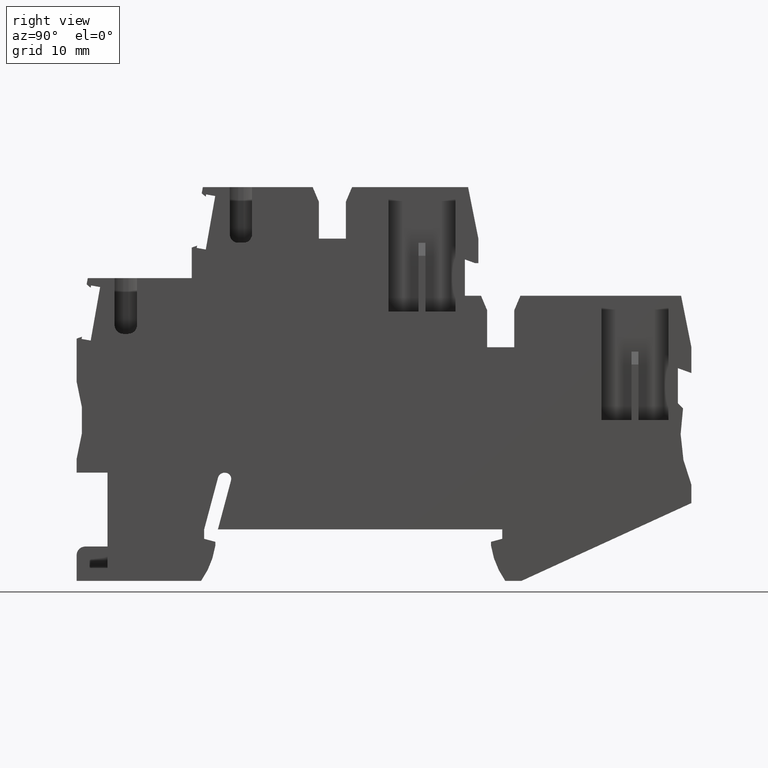
[diagram: clean part render]
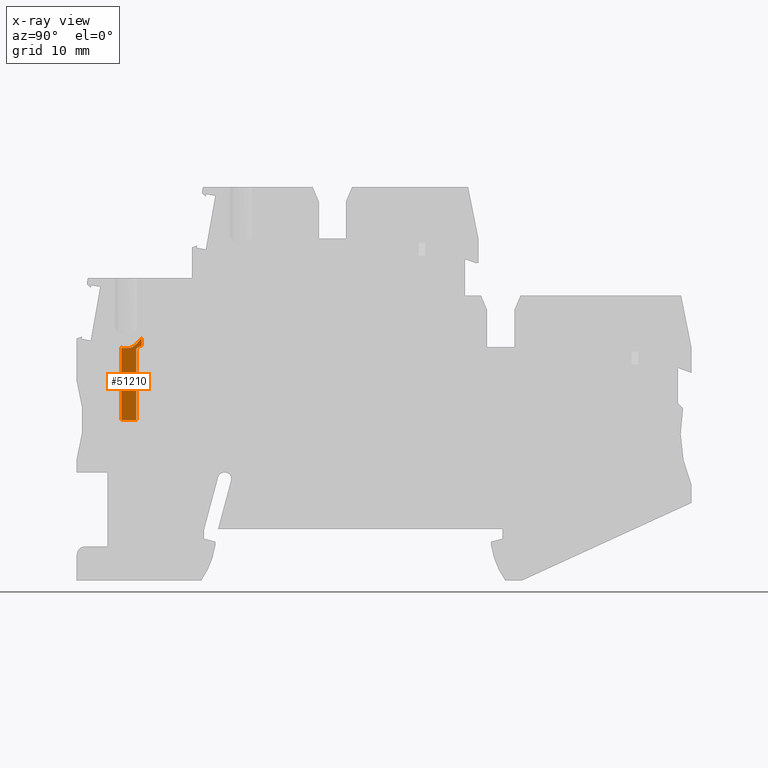
[diagram: x-ray — body ghosted, one internal face saturated and labeled with its STEP entity id]
A machine part, right view, then the same camera in x-ray: the body is ghosted and one INTERNAL B-rep face — a face not visible from any outside direction — is saturated and labeled: STEP entity #51210.
In plain terms, the highlighted planar face has unit normal (-1, 0, -0).
Its self-contained STEP definition (entity closure, byte-faithful):
#28490=CARTESIAN_POINT('',(141.343635451664,25.2467138221766,
51.2699999999994));
#28500=DIRECTION('',(0.,1.,0.));
#28510=DIRECTION('',(-1.,0.,0.));
#28520=AXIS2_PLACEMENT_3D('',#28490,#28500,#28510);
#28530=CONICAL_SURFACE('',#28520,2.4,0.523598775598298);
#28580=CARTESIAN_POINT('',(141.343635451663,23.6012655549863,
52.7199999999994));
#28590=VERTEX_POINT('',#28580);
#28620=CARTESIAN_POINT('',(140.652891747308,22.5967138221764,52.72));
#28630=DIRECTION('',(0.,0.,-1.));
#28640=DIRECTION('',(1.,0.,0.));
#28650=AXIS2_PLACEMENT_3D('',#28620,#28630,#28640);
#28660=PLANE('',#28650);
#28670=CARTESIAN_POINT('',(141.343635451663,23.6012655549873,52.72));
#28680=CARTESIAN_POINT('',(141.364502396657,23.6012655549872,52.72));
#28690=CARTESIAN_POINT('',(141.385415932443,23.6020480025081,52.72));
#28700=CARTESIAN_POINT('',(141.406300217432,23.6036098206589,52.72));
#28710=CARTESIAN_POINT('',(141.42718432045,23.6051716252011,52.72));
#28720=CARTESIAN_POINT('',(141.448036163921,23.6075125788127,
52.7199999999997));
#28730=CARTESIAN_POINT('',(141.468777193002,23.610601548836,
52.7199999999997));
#28740=CARTESIAN_POINT('',(141.489518247334,23.6136905226199,
52.7199999999997));
#28750=CARTESIAN_POINT('',(141.510145908656,23.6175268611545,
52.7199999999994));
#28760=CARTESIAN_POINT('',(141.530587536323,23.6220543597171,
52.7199999999994));
#28770=CARTESIAN_POINT('',(141.551029363383,23.6265819024417,
52.7199999999994));
#28780=CARTESIAN_POINT('',(141.571283275718,23.631799750434,
52.7199999999999));
#28790=CARTESIAN_POINT('',(141.591288553487,23.637633357991,
52.7199999999999));
#28800=CARTESIAN_POINT('',(141.611302821894,23.6434695872491,
52.7199999999999));
#28810=CARTESIAN_POINT('',(141.631018031107,23.6499027178598,
52.7199999999993));
#28820=CARTESIAN_POINT('',(141.650579861898,23.6569195810514,
52.7199999999993));
#28830=CARTESIAN_POINT('',(141.670136706652,23.6639346557427,
52.7199999999993));
#28840=CARTESIAN_POINT('',(141.689504767188,23.6715238285442,52.72));
#28850=CARTESIAN_POINT('',(141.708676237396,23.6796305519108,52.72));
#28860=CARTESIAN_POINT('',(141.747019208385,23.6958440115722,52.72));
#28870=CARTESIAN_POINT('',(141.784575415822,23.7141274199553,52.72));
#28880=CARTESIAN_POINT('',(141.821285613908,23.7340212674954,52.72));
#28890=CARTESIAN_POINT('',(141.857995624217,23.7539150132759,52.72));
#28900=CARTESIAN_POINT('',(141.893860768248,23.7754186582795,
52.7199999999911));
#28910=CARTESIAN_POINT('',(141.92881781051,23.7980782756435,
52.7199999999911));
#28920=CARTESIAN_POINT('',(141.94629954784,23.8094101691079,
52.7199999999911));
#28930=CARTESIAN_POINT('',(141.963540906847,23.8210221910356,
52.7199999999995));
#28940=CARTESIAN_POINT('',(141.980570856518,23.8328850522906,
52.7199999999995));
#28950=CARTESIAN_POINT('',(141.997607423503,23.8447525230887,
52.7199999999995));
#28960=CARTESIAN_POINT('',(142.014455680429,23.8568875293601,52.72));
#28970=CARTESIAN_POINT('',(142.031130259209,23.8692607777406,52.72));
#28980=CARTESIAN_POINT('',(142.047804883933,23.881634060213,52.72));
#28990=CARTESIAN_POINT('',(142.064305953484,23.8942457162682,52.72));
#29000=CARTESIAN_POINT('',(142.080647021332,23.907070386658,52.72));
#29010=CARTESIAN_POINT('',(142.096988117601,23.9198950793534,52.72));
#29020=CARTESIAN_POINT('',(142.113169301729,23.9329328969106,52.72));
#29030=CARTESIAN_POINT('',(142.129202805059,23.946161643017,52.72));
#29040=CARTESIAN_POINT('',(142.16126965663,23.9726190072724,52.72));
#29050=CARTESIAN_POINT('',(142.192748066293,23.9998389606415,52.72));
#29060=CARTESIAN_POINT('',(142.223717568508,24.0276709824719,52.72));
#29070=CARTESIAN_POINT('',(142.254687141165,24.055503067607,52.72));
#29080=CARTESIAN_POINT('',(142.285148796231,24.0839490768544,52.72));
#29090=CARTESIAN_POINT('',(142.31515994289,24.1128829364211,52.72));
#29100=CARTESIAN_POINT('',(142.345171028138,24.1418167367807,52.72));
#29110=CARTESIAN_POINT('',(142.374732002643,24.1712394902047,52.72));
#29120=CARTESIAN_POINT('',(142.403880933272,24.2010394543302,52.72));
#29130=CARTESIAN_POINT('',(142.433029775894,24.2308393284826,52.72));
#29140=CARTESIAN_POINT('',(142.461766664982,24.2610170168,52.72));
#29150=CARTESIAN_POINT('',(142.490114226966,24.2914696858302,52.72));
#29160=CARTESIAN_POINT('',(142.5184682647,24.3219293115024,52.72));
#29170=CARTESIAN_POINT('',(142.546396875849,24.3526237121565,
52.7199999999887));
#29180=CARTESIAN_POINT('',(142.574048585426,24.3836117696246,
52.7199999999887));
#29190=CARTESIAN_POINT('',(142.60169691324,24.4145960372977,
52.7199999999887));
#29200=CARTESIAN_POINT('',(142.629044633301,24.4458491801443,52.72));
#29210=CARTESIAN_POINT('',(142.656130154897,24.4773318524904,52.72));
#29220=CARTESIAN_POINT('',(142.683215714024,24.5088145684606,52.72));
#29230=CARTESIAN_POINT('',(142.710039126624,24.5405271233941,52.72));
#29240=CARTESIAN_POINT('',(142.736632295367,24.5724375191148,52.72));
#29250=CARTESIAN_POINT('',(142.763225480584,24.6043479346028,52.72));
#29260=CARTESIAN_POINT('',(142.78958844356,24.6364564080436,52.72));
#29270=CARTESIAN_POINT('',(142.815747598746,24.668736214503,52.72));
#29280=CARTESIAN_POINT('',(142.841906757392,24.7010160252337,52.72));
#29290=CARTESIAN_POINT('',(142.867862112163,24.7334673213924,52.72));
#29300=CARTESIAN_POINT('',(142.893635451556,24.7660671728053,52.72));
#29310=B_SPLINE_CURVE_WITH_KNOTS('',3,(#28670,#28680,#28690,#28700,
#28710,#28720,#28730,#28740,#28750,#28760,#28770,#28780,#28790,#28800,
#28810,#28820,#28830,#28840,#28850,#28860,#28870,#28880,#28890,#28900,
#28910,#28920,#28930,#28940,#28950,#28960,#28970,#28980,#28990,#29000,
#29010,#29020,#29030,#29040,#29050,#29060,#29070,#29080,#29090,#29100,
#29110,#29120,#29130,#29140,#29150,#29160,#29170,#29180,#29190,#29200,
#29210,#29220,#29230,#29240,#29250,#29260,#29270,#29280,#29290,#29300),
.UNSPECIFIED.,.F.,.F.,(4,3,3,3,3,3,3,3,3,3,3,3,3,3,3,3,3,3,3,3,3,4),(0.,
0.0627231605469414,0.125604174314015,0.188479487788734,0.251159107173066
,0.313517829807137,0.375903574984352,0.501009049946287,0.626206979874277
,0.688578842571129,0.750866375271425,0.813169765681626,0.875507424614241
,1.00032381104805,1.12532134227659,1.25039774411225,1.37535615425059,
1.49999849743412,1.62458285373215,1.74918623014436,1.87381733988813,
1.9984769623291),.UNSPECIFIED.);
#29320=SURFACE_CURVE('',#29310,(#28660,#28530),.CURVE_3D.);
#29330=CARTESIAN_POINT('',(142.893635451663,24.7660671728445,
52.7199999999994));
#29340=VERTEX_POINT('',#29330);
#29350=EDGE_CURVE('',#28590,#29340,#29320,.T.);
#43680=CARTESIAN_POINT('',(14.196323,23.6012655549873,52.72));
#43690=DIRECTION('',(1.,0.,0.));
#43700=VECTOR('',#43690,1.);
#43710=LINE('',#43680,#43700);
#43720=CARTESIAN_POINT('',(140.743635451693,23.6012655549863,
52.7199999999994));
#43730=VERTEX_POINT('',#43720);
#43740=EDGE_CURVE('',#43730,#28590,#43710,.T.);
#44030=CARTESIAN_POINT('',(142.268635451671,15.1967138221764,
52.7199999999994));
#44040=VERTEX_POINT('',#44030);
#44210=CARTESIAN_POINT('',(142.268635451671,23.5467138221847,
52.7199999999994));
#44220=VERTEX_POINT('',#44210);
#44250=CARTESIAN_POINT('',(142.268635451671,1.29887212096946E-11,
52.7199999999994));
#44260=DIRECTION('',(-1.64361278210811E-15,-1.,0.));
#44270=VECTOR('',#44260,1.);
#44280=LINE('',#44250,#44270);
#44290=EDGE_CURVE('',#44220,#44040,#44280,.T.);
#44500=CARTESIAN_POINT('',(142.893635451663,23.9075577404236,
52.7199999999994));
#44510=VERTEX_POINT('',#44500);
#44560=CARTESIAN_POINT('',(-1.4210854715202E-14,-58.5921211530783,
52.7199999999994));
#44570=DIRECTION('',(-0.866025403784439,-0.499999999999999,0.));
#44580=VECTOR('',#44570,1.);
#44590=LINE('',#44560,#44580);
#44600=EDGE_CURVE('',#44510,#44220,#44590,.T.);
#45020=CARTESIAN_POINT('',(-1.4210854715202E-14,15.1967138221747,
52.7199999999994));
#45030=DIRECTION('',(-1.,-1.18423789293351E-14,0.));
#45040=VECTOR('',#45030,1.);
#45050=LINE('',#45020,#45040);
#45060=CARTESIAN_POINT('',(140.518635451663,15.1967138221764,
52.7199999999994));
#45070=VERTEX_POINT('',#45060);
#45080=EDGE_CURVE('',#44040,#45070,#45050,.T.);
#48070=CARTESIAN_POINT('',(140.743635451664,25.2467138221766,
51.2699999999994));
#48080=DIRECTION('',(-6.83720066269712E-15,1.,0.));
#48090=DIRECTION('',(-1.,0.,0.));
#48100=AXIS2_PLACEMENT_3D('',#48070,#48080,#48090);
#48110=CONICAL_SURFACE('',#48100,2.4,0.523598775598299);
#49800=CARTESIAN_POINT('',(140.518635451685,23.6313219349793,
52.7199999999994));
#49810=VERTEX_POINT('',#49800);
#49840=CARTESIAN_POINT('',(140.518635451672,23.6313219349835,52.72));
#49850=CARTESIAN_POINT('',(140.53683672349,23.6264878947675,52.72));
#49860=CARTESIAN_POINT('',(140.55524263686,23.6221732560744,52.72));
#49870=CARTESIAN_POINT('',(140.573809078366,23.6184324261223,52.72));
#49880=CARTESIAN_POINT('',(140.592375268858,23.6146916467453,52.72));
#49890=CARTESIAN_POINT('',(140.611100754041,23.6115252499446,52.72));
#49900=CARTESIAN_POINT('',(140.629930430804,23.6089755802333,52.72));
#49910=CARTESIAN_POINT('',(140.648759983963,23.606425927259,52.72));
#49920=CARTESIAN_POINT('',(140.667692068089,23.6044934504632,52.72));
#49930=CARTESIAN_POINT('',(140.68666475624,23.6032033068422,52.72));
#49940=CARTESIAN_POINT('',(140.705637455715,23.6019131624512,52.72));
#49950=CARTESIAN_POINT('',(140.724648812185,23.6012655549866,52.72));
#49960=CARTESIAN_POINT('',(140.743635451693,23.6012655549873,52.72));
#49970=B_SPLINE_CURVE_WITH_KNOTS('',3,(#49840,#49850,#49860,#49870,
#49880,#49890,#49900,#49910,#49920,#49930,#49940,#49950,#49960),
.UNSPECIFIED.,.F.,.F.,(4,3,3,3,4),(0.,0.0566679519579083,
0.113590285215229,0.170628066736841,0.227642657621287),.UNSPECIFIED.);
#49980=SURFACE_CURVE('',#49970,(#28660,#48110),.CURVE_3D.);
#49990=EDGE_CURVE('',#49810,#43730,#49980,.T.);
#50850=CARTESIAN_POINT('',(142.893635451663,1.29887212096946E-11,
52.7199999999994));
#50860=DIRECTION('',(0.,-1.,0.));
#50870=VECTOR('',#50860,1.);
#50880=LINE('',#50850,#50870);
#50890=EDGE_CURVE('',#29340,#44510,#50880,.T.);
#51010=CARTESIAN_POINT('',(140.652891747308,22.5967138221764,
52.7199999999994));
#51020=DIRECTION('',(0.,0.,-1.));
#51030=DIRECTION('',(1.,0.,0.));
#51040=AXIS2_PLACEMENT_3D('',#51010,#51020,#51030);
#51050=PLANE('',#51040);
#51060=ORIENTED_EDGE('',*,*,#50890,.T.);
#51070=ORIENTED_EDGE('',*,*,#29350,.T.);
#51080=ORIENTED_EDGE('',*,*,#43740,.T.);
#51090=ORIENTED_EDGE('',*,*,#49990,.T.);
#51100=CARTESIAN_POINT('',(140.518635451663,22.5967138221764,
52.7199999999994));
#51110=DIRECTION('',(0.,-1.,0.));
#51120=VECTOR('',#51110,1.);
#51130=LINE('',#51100,#51120);
#51140=EDGE_CURVE('',#49810,#45070,#51130,.T.);
#51150=ORIENTED_EDGE('',*,*,#51140,.F.);
#51160=ORIENTED_EDGE('',*,*,#45080,.T.);
#51170=ORIENTED_EDGE('',*,*,#44290,.T.);
#51180=ORIENTED_EDGE('',*,*,#44600,.T.);
#51190=EDGE_LOOP('',(#51180,#51170,#51160,#51150,#51090,#51080,#51070,
#51060));
#51200=FACE_OUTER_BOUND('',#51190,.T.);
#51210=ADVANCED_FACE('',(#51200),#51050,.T.);